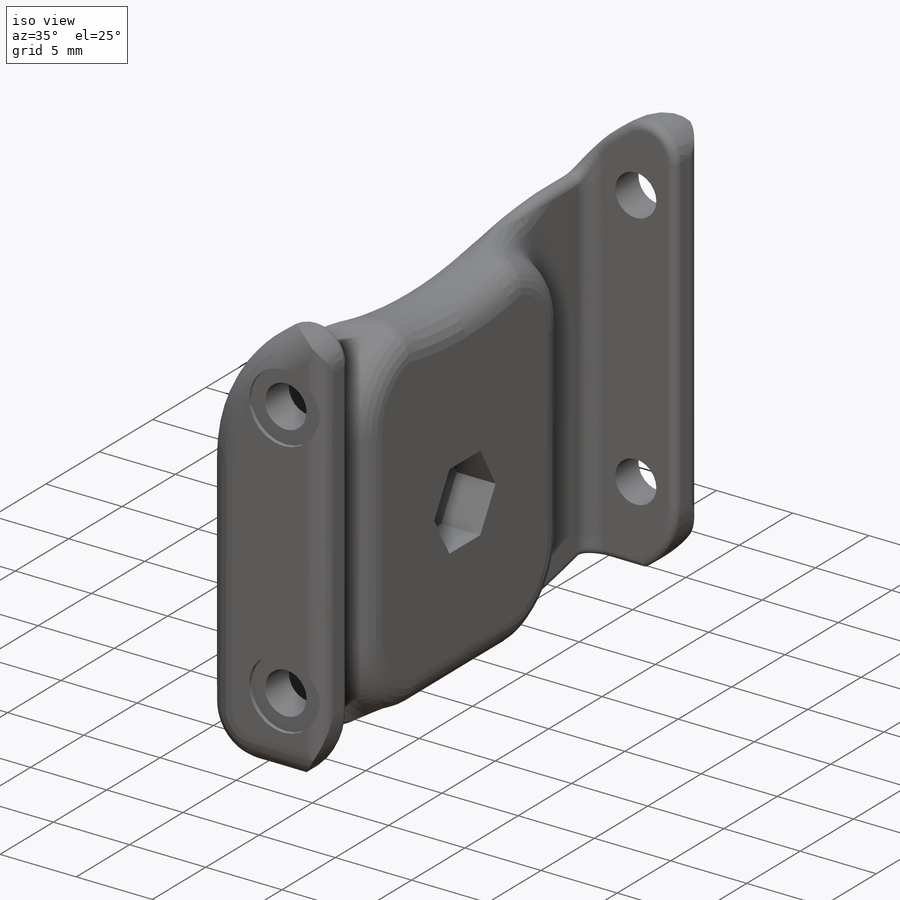
[diagram: iso view]
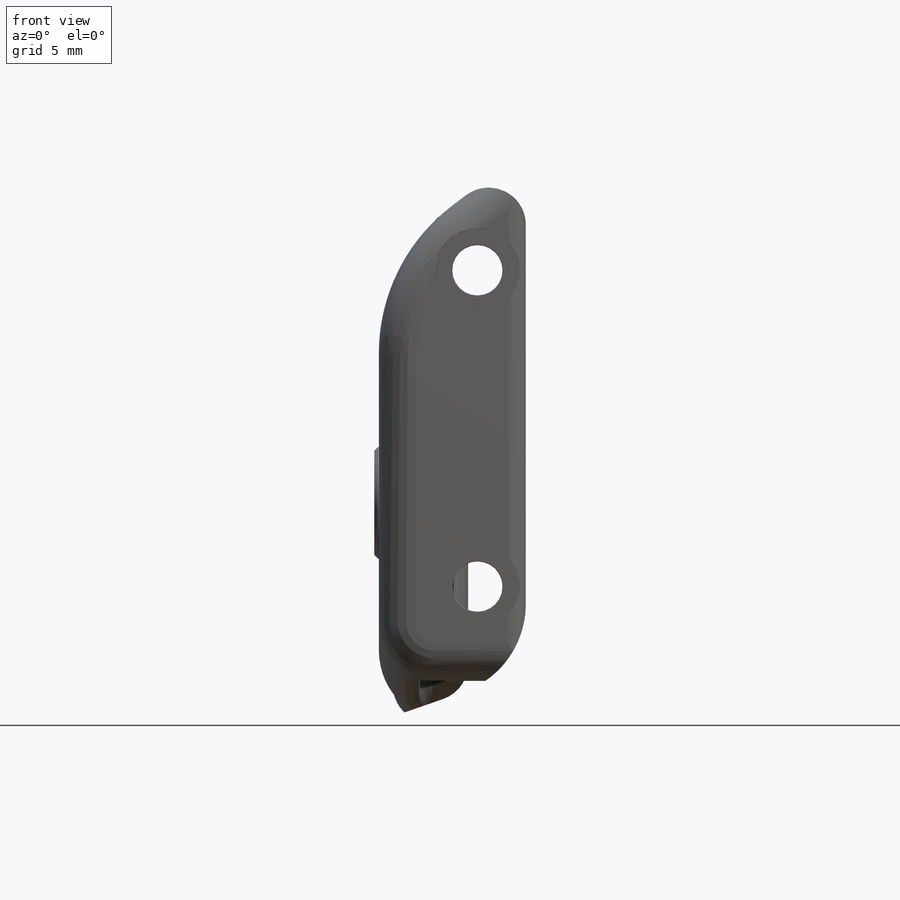
[diagram: front view]
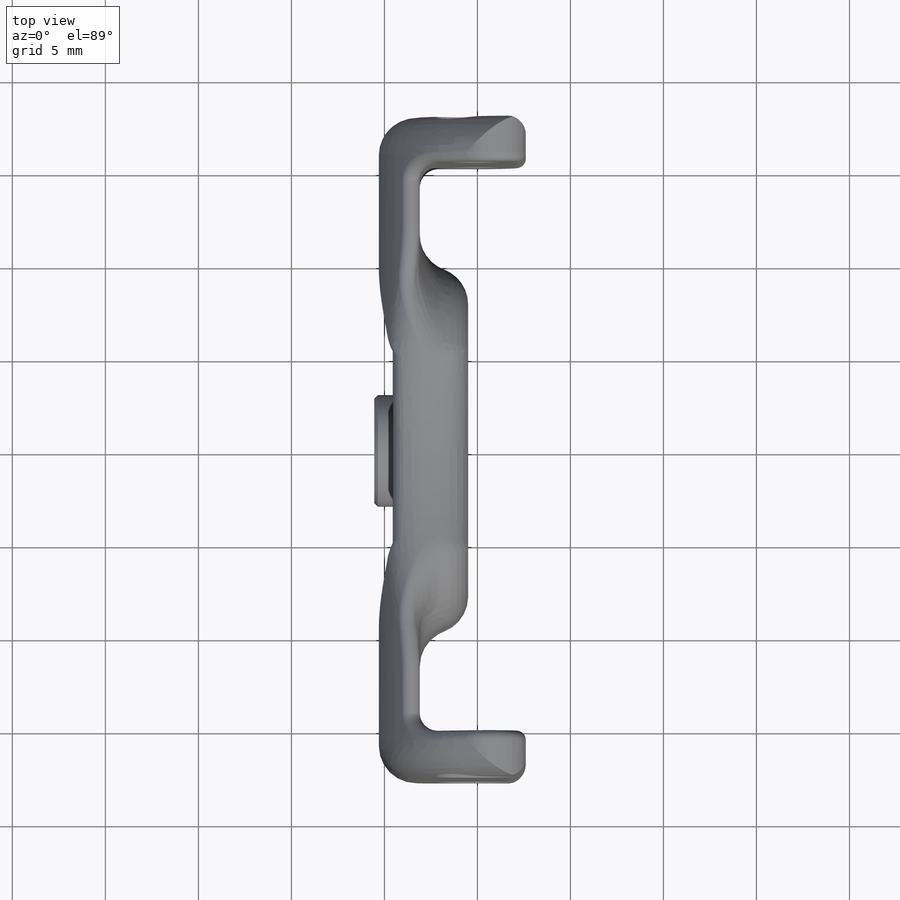
[diagram: top view]
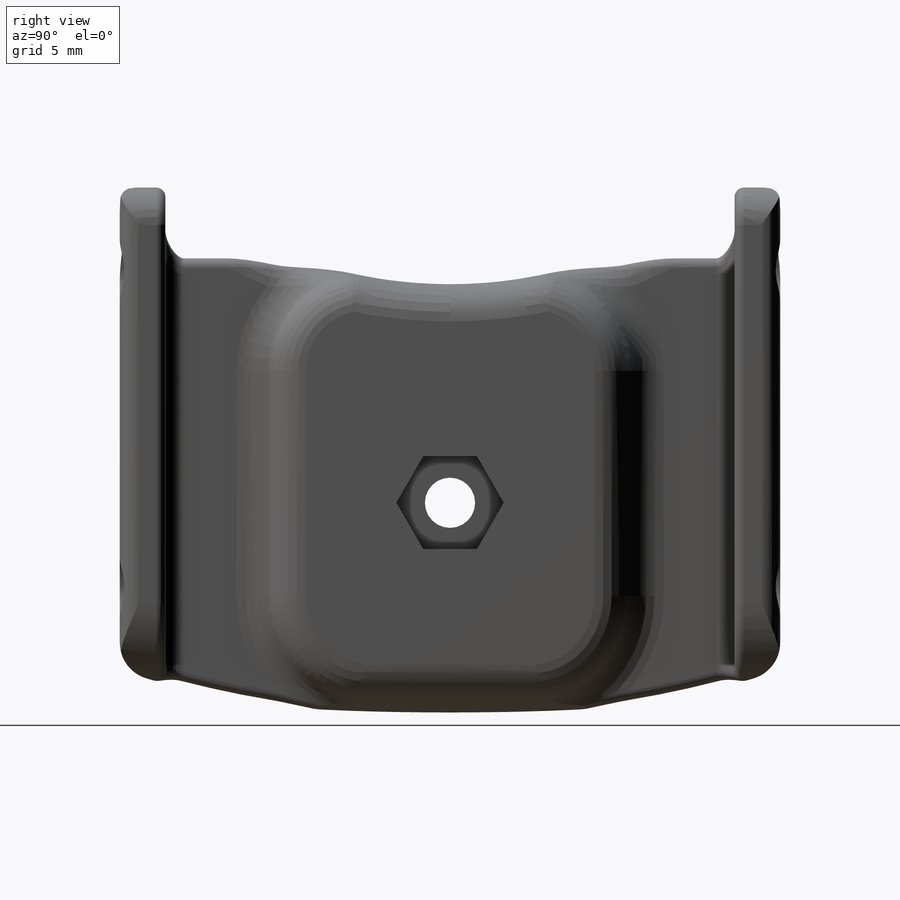
[diagram: right view]
SOLIDWORKS PART (.sldprt)
format: sldprt  version: not decoded by parser v0  size: 1,917,440 bytes
history: native  units: mm
features: sketch x19, fillet x18, cut_extrude x8, plane x5, extrude x3, mirror x2, material x1, hole x1, chamfer x1 (+14 scaffold rows collapsed; 2 parser-record rows omitted)
feature tree (74):
  scaffold x14  (default folders/planes/origin — collapsed)
  material  "Polyamide"
  sketch  "motor_front_dimensions"  dims[D2=22.0mm D13=2.7mm D1=12.5mm D3=50.6mm D4=35.8mm D5=33.0mm D6=12.2mm D7=15.0mm D8=17.8mm D9=8.5mm D10=17.0mm D11=17.0mm D12=4.5mm]
  sketch  "motor_lateral_dimensions"  dims[D1=4.5mm D2=15.0mm D3=17.75mm]
  sketch  "motor_top_dimensions"
  plane  "Plane1"
  plane  "horn_plane"  Offset=4mm
  sketch  "horn_front_dimensions"  dims[D1=22.0mm D3=2.2mm D4=16.0mm D2=8.0]
  sketch  "horn_lateral_dimensions"  dims[D1=2.0mm D2=1.05mm D3=6.25mm]
  plane  "Plane3"
  sketch  "Sketch14"  dims[D1=1.25mm D2=3.0mm D3=1.9mm D4=4.0mm D5=6.5mm D6=0.15mm]
  parser-record x2  (decoder bookkeeping rows leaked as tree rows — omitted from the tree; the rows remain in map.json)
  sketch  "Sketch7"  dims[c1.D7=2.0mm c1.D8=5.0mm c1.D1=0.2mm c1.D2=4.5mm c1.D3=4.5mm c1.D4=2.5mm c2.D2=4.5mm c2.D3=4.5mm c3.D2=4.5mm c3.D5=2.0mm c3.D6=0.75mm c4.D2=4.5mm]
  extrude  "Boss-Extrude1"  [1 undecoded]
  sketch  "Sketch23"  dims[D1=0.75mm]
  cut_extrude  "Cut-Extrude9"  [1 undecoded]
  sketch  "Sketch8"  dims[c1.D1=1.0mm c1.D2=0.3mm c1.D3=0.3mm c1.D4=0.75mm c1.D5=1.25mm c2.D4=0.75mm c2.D5=1.0mm c2.D6=0.25mm c2.D7=0.5mm]
  cut_extrude  "Cut-Extrude1"  [1 undecoded]
  mirror  "Mirror1"
  sketch  "Sketch12"
  cut_extrude  "Cut-Extrude2"  [1 undecoded]
  sketch  "Sketch13"  dims[D1=1.0mm]
  cut_extrude  "Cut-Extrude3"  Depth=0.75mm
  sketch  "Sketch10"
  extrude  "Boss-Extrude3"  [1 undecoded]
  sketch  "Sketch11"
  extrude  "Boss-Extrude4"  [1 undecoded]
  sketch  "Sketch17"  dims[D1=1.5mm]
  cut_extrude  "Cut-Extrude6"  Depth=3mm
  plane  "Plane4"
  plane  "Plane5"  Offset=10mm
  hole  "CBORE for M2.5 Hex Socket Head Cap Screw1"  Diameter=2.7mm Depth=9.7mm
  sketch  "Sketch19"
  sketch  "Sketch18"  dims[hole-wizard template sketch: 42 standard entries collapsed; hole parameters kept: c12.Thru Hole Depth=9.7mm c12.C'Bore Dia.=4.5mm c12.C'Bore Depth=7.5mm c12.Mid C'Sink Dia.=2.75mm c12.D6=~5.388154mm c12.Mid C'Sink Angle=90.0deg]
  sketch  "Sketch24"  dims[D1=5.0mm D2=~14.552692mm]
  cut_extrude  "Cut-Extrude10"  [1 undecoded]
  sketch  "Sketch21"  dims[D1=2.7mm]
  cut_extrude  "Cut-Extrude7"  [1 undecoded]
  sketch  "Sketch22"  dims[D1=5.0mm]
  cut_extrude  "Cut-Extrude8"  Depth=2.5mm
  fillet  "Fillet16"  Radius=5mm
  fillet  "Fillet3"  Radius=10mm
  fillet  "Fillet6"  Radius=2mm
  fillet  "Fillet17"  Radius=10mm
  fillet  "Fillet18"  Radius=2mm
  fillet  "Fillet4"  Radius=1mm
  fillet  "Fillet5"  Radius=1mm
  fillet  "Fillet7"  Radius=2mm
  fillet  "Fillet8"  Radius=2mm
  fillet  "Fillet25"  Radius=2mm
  fillet  "Fillet11"  Radius=0.5mm
  fillet  "Fillet26"  Radius=2mm
  fillet  "Fillet19"  Radius=0.5mm
  fillet  "Fillet22"  Radius=3mm
  fillet  "Fillet23"  Radius=0.5mm
  fillet  "Fillet24"  Radius=0.5mm
  chamfer  "Chamfer1"  Distance=0.2mm Angle=45deg
  fillet  "Fillet27"  Radius=0.5mm
  fillet  "Fillet28"  Radius=2mm
  mirror  "Mirror2"
decode coverage: 37 of 52 modeling features carry decoded parameters
note: ~ marks probable driven/reference dimensions
note: 8 parameter values undecoded
summary: no parameter record found for 8 features
note: suppression state not decoded; provenance and decode notes live in map.json
